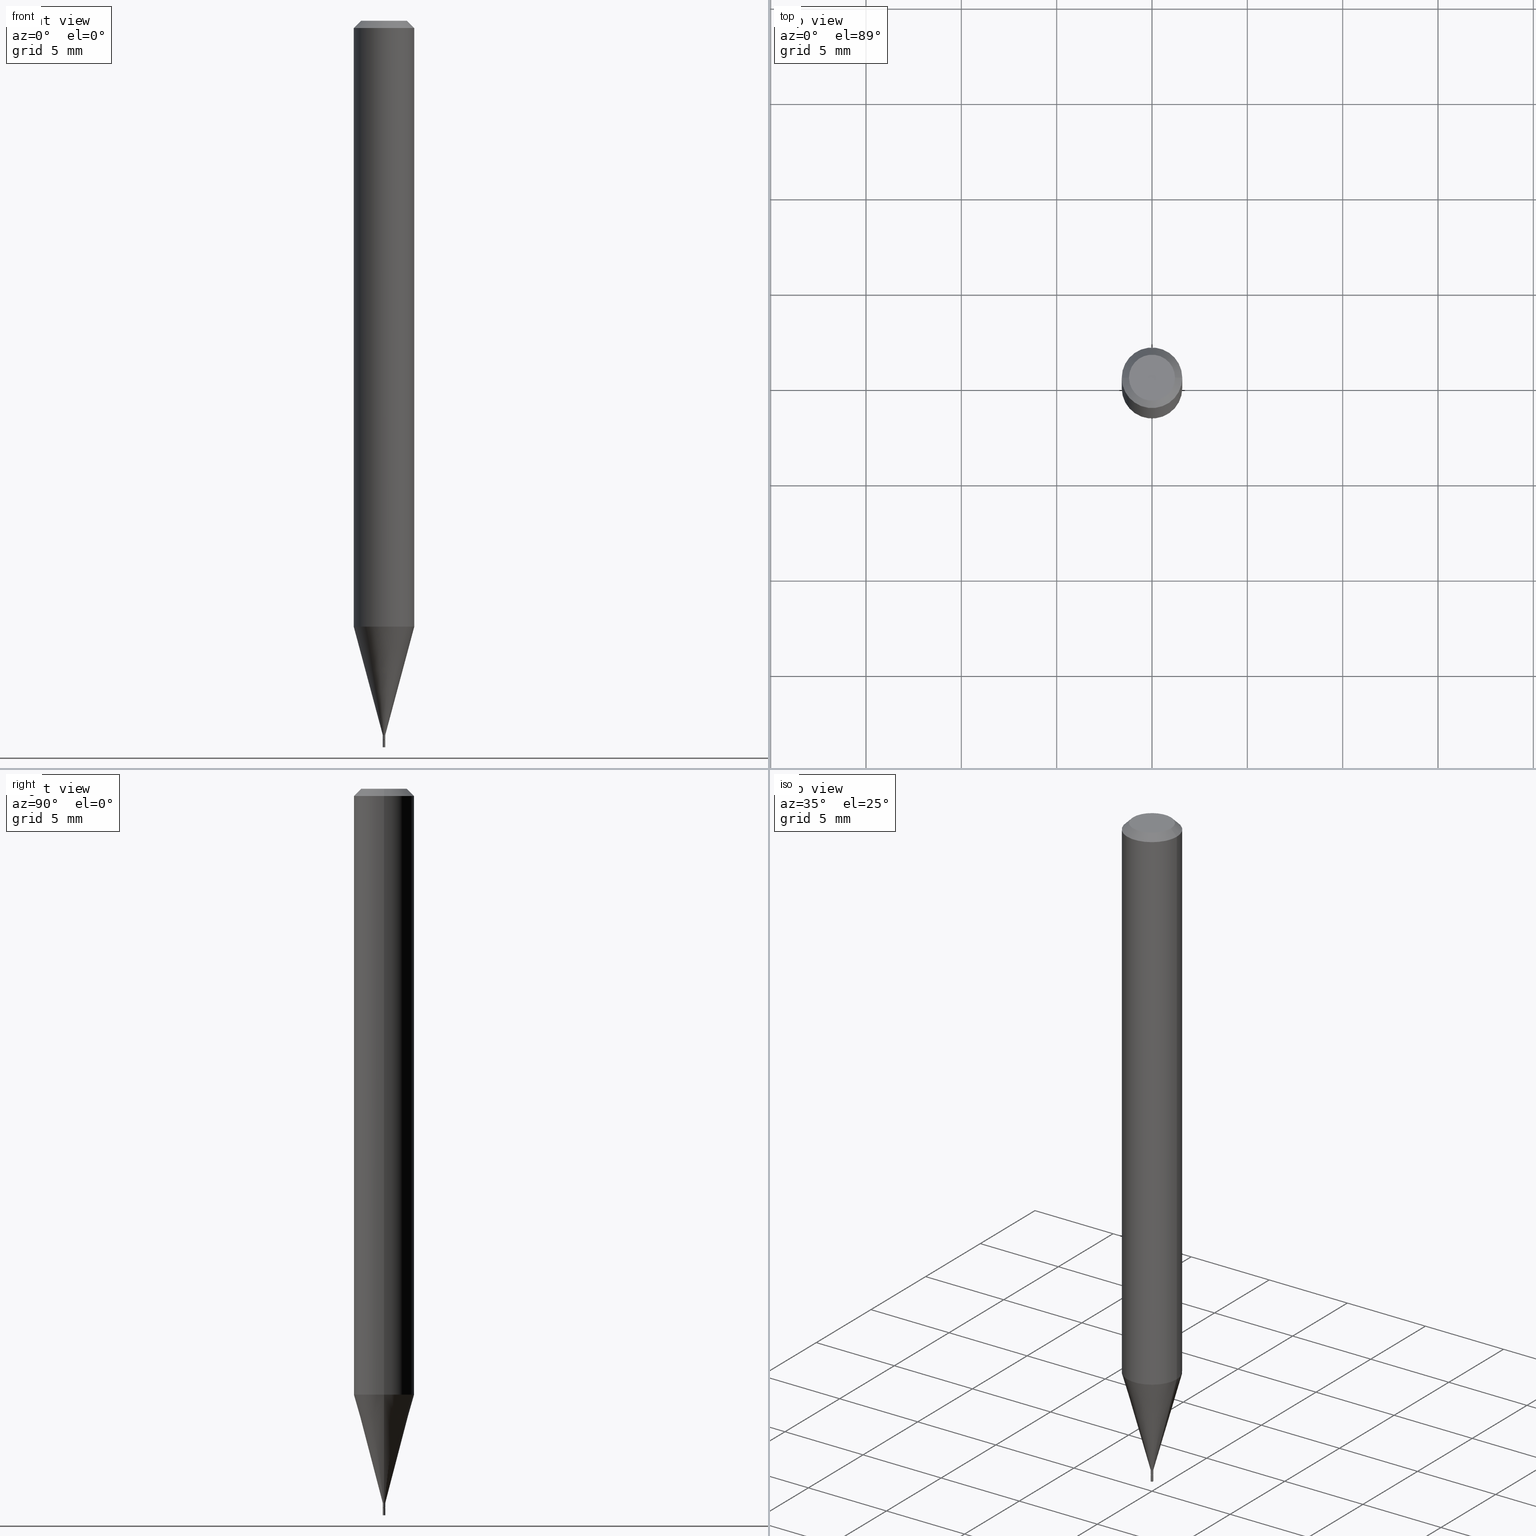
[diagram: canonical four-view strip — front | top / right | iso, engineering-drawing reading convention]
A machine part, canonical four-view strip (front | top / right | iso — engineering-drawing reading convention). The complete STEP part file that produces these views, byte-faithful:
ISO-10303-21;
HEADER;
FILE_DESCRIPTION (( 'STEP AP203' ),
    '1' );
FILE_NAME ('01156.STEP',
    '2024-03-19T23:28:00',
    ( '' ),
    ( '' ),
    'SwSTEP 2.0',
    'SolidWorks 2023',
    '' );
FILE_SCHEMA (( 'CONFIG_CONTROL_DESIGN' ));
ENDSEC;

DATA;
#1 = FACE_OUTER_BOUND ( 'NONE', #32, .T. ) ;
#2 = CARTESIAN_POINT ( 'NONE',  ( 0.002499999999999921556, -1.745740669421511889E-17, 1.219044193948945675E-31 ) ) ;
#3 = VECTOR ( 'NONE', #367, 39.37007874015748143 ) ;
#4 = ORIENTED_EDGE ( 'NONE', *, *, #378, .F. ) ;
#5 = DIRECTION ( 'NONE',  ( 1.000000000000000000, -6.982962677686342441E-15, 0.000000000000000000 ) ) ;
#6 = EDGE_LOOP ( 'NONE', ( #21, #371, #19, #429 ) ) ;
#7 = EDGE_CURVE ( 'NONE', #152, #393, #287, .T. ) ;
#8 = LINE ( 'NONE', #295, #164 ) ;
#9 = ORIENTED_EDGE ( 'NONE', *, *, #408, .T. ) ;
#10 = ORIENTED_EDGE ( 'NONE', *, *, #408, .F. ) ;
#11 = CIRCLE ( 'NONE', #395, 0.002499999999999921122 ) ;
#12 = VERTEX_POINT ( 'NONE', #191 ) ;
#13 = DATE_TIME_ROLE ( 'classification_date' ) ;
#14 = DIRECTION ( 'NONE',  ( -2.445468806185136597E-29, 3.491481338843145583E-15, 1.000000000000000000 ) ) ;
#15 = FACE_OUTER_BOUND ( 'NONE', #461, .T. ) ;
#16 = EDGE_LOOP ( 'NONE', ( #432, #143, #347, #66 ) ) ;
#17 = MANIFOLD_SOLID_BREP ( 'Body-Move/Copy2[1]', #203 ) ;
#18 = CARTESIAN_POINT ( 'NONE',  ( 3.630298442781835897E-29, -5.183104047512649988E-15, -1.484500000000000153 ) ) ;
#19 = ORIENTED_EDGE ( 'NONE', *, *, #161, .T. ) ;
#20 = DIRECTION ( 'NONE',  ( -2.438088387897960049E-29, 3.491481338843145188E-15, 1.000000000000000000 ) ) ;
#21 = ORIENTED_EDGE ( 'NONE', *, *, #207, .F. ) ;
#22 = AXIS2_PLACEMENT_3D ( 'NONE', #275, #63, #127 ) ;
#23 = CYLINDRICAL_SURFACE ( 'NONE', #375, 0.002499999999999921556 ) ;
#24 = VERTEX_POINT ( 'NONE', #436 ) ;
#25 = EDGE_CURVE ( 'NONE', #400, #152, #322, .T. ) ;
#26 = FACE_OUTER_BOUND ( 'NONE', #124, .T. ) ;
#27 = DIRECTION ( 'NONE',  ( 1.000000000000000000, -6.982962677686266711E-15, 4.876176775795935793E-29 ) ) ;
#28 = CC_DESIGN_PERSON_AND_ORGANIZATION_ASSIGNMENT ( #392, #109, ( #101 ) ) ;
#29 = ORIENTED_EDGE ( 'NONE', *, *, #351, .T. ) ;
#30 = ORGANIZATION ( 'UNSPECIFIED', 'UNSPECIFIED', '' ) ;
#31 = ADVANCED_FACE ( 'NONE', ( #374 ), #194, .T. ) ;
#32 = EDGE_LOOP ( 'NONE', ( #106, #46, #148, #356 ) ) ;
#33 = PERSON_AND_ORGANIZATION_ROLE ( 'classification_officer' ) ;
#34 = EDGE_LOOP ( 'NONE', ( #247, #58, #123, #168 ) ) ;
#35 = ADVANCED_BREP_SHAPE_REPRESENTATION ( '01156', ( #17, #174, #71 ), #142 ) ;
#36 = EDGE_LOOP ( 'NONE', ( #10, #354, #104, #230 ) ) ;
#37 = ORIENTED_EDGE ( 'NONE', *, *, #454, .T. ) ;
#38 = APPROVAL_DATE_TIME ( #245, #219 ) ;
#39 = APPROVAL_ROLE ( '' ) ;
#40 = FACE_OUTER_BOUND ( 'NONE', #112, .T. ) ;
#41 = DIRECTION ( 'NONE',  ( -0.2588190451025214611, 5.211531920934550253E-15, 0.9659258262890679791 ) ) ;
#42 = PERSON ( 'UNSPECIFIED', 'UNSPECIFIED', 'UNSPECIFIED', ('UNSPECIFIED'), ('UNSPECIFIED'), ('UNSPECIFIED') ) ;
#43 = APPROVAL_PERSON_ORGANIZATION ( #246, #252, #39 ) ;
#44 = DIRECTION ( 'NONE',  ( -1.000000000000000000, 6.982962677686265922E-15, -4.876176775795935793E-29 ) ) ;
#45 = FACE_OUTER_BOUND ( 'NONE', #274, .T. ) ;
#46 = ORIENTED_EDGE ( 'NONE', *, *, #248, .T. ) ;
#47 = CARTESIAN_POINT ( 'NONE',  ( 0.002499999999999998751, -1.745740669421565815E-17, 1.219044193948983554E-31 ) ) ;
#48 = CARTESIAN_POINT ( 'NONE',  ( -0.06250000000000000000, 4.440892098500626162E-16, -3.074334431409316114E-30 ) ) ;
#49 = ORIENTED_EDGE ( 'NONE', *, *, #25, .F. ) ;
#50 = CARTESIAN_POINT ( 'NONE',  ( 3.631521177184928138E-29, -5.184849788182071492E-15, -1.485000000000000098 ) ) ;
#51 = DIRECTION ( 'NONE',  ( -2.445468806185136597E-29, 3.491481338843145583E-15, 1.000000000000000000 ) ) ;
#52 = AXIS2_PLACEMENT_3D ( 'NONE', #186, #258, #86 ) ;
#53 =( NAMED_UNIT ( * ) SI_UNIT ( $, .STERADIAN. ) SOLID_ANGLE_UNIT ( ) );
#54 = AXIS2_PLACEMENT_3D ( 'NONE', #448, #273, #416 ) ;
#55 = CARTESIAN_POINT ( 'NONE',  ( 3.607066489123076032E-29, -5.149934974793639843E-15, -1.474999999999999867 ) ) ;
#56 = EDGE_CURVE ( 'NONE', #283, #152, #146, .T. ) ;
#57 = LENGTH_MEASURE_WITH_UNIT ( LENGTH_MEASURE( 0.02539999999999999897 ), #343 );
#58 = ORIENTED_EDGE ( 'NONE', *, *, #210, .T. ) ;
#59 = DIRECTION ( 'NONE',  ( -2.445468806185136597E-29, 3.491481338843145583E-15, 1.000000000000000000 ) ) ;
#60 = CC_DESIGN_DATE_AND_TIME_ASSIGNMENT ( #328, #13, ( #173 ) ) ;
#61 = LINE ( 'NONE', #133, #450 ) ;
#62 = EDGE_LOOP ( 'NONE', ( #176, #440 ) ) ;
#63 = DIRECTION ( 'NONE',  ( -2.445468806185136597E-29, 3.491481338843145583E-15, 1.000000000000000000 ) ) ;
#64 = ADVANCED_FACE ( 'NONE', ( #15 ), #263, .T. ) ;
#65 = APPLICATION_PROTOCOL_DEFINITION ( 'international standard', 'config_control_design', 1994, #349 ) ;
#66 = ORIENTED_EDGE ( 'NONE', *, *, #351, .F. ) ;
#67 = AXIS2_PLACEMENT_3D ( 'NONE', #337, #125, #413 ) ;
#68 = DIRECTION ( 'NONE',  ( 1.000000000000000000, -6.982962677686266711E-15, 0.000000000000000000 ) ) ;
#69 = VECTOR ( 'NONE', #360, 39.37007874015748143 ) ;
#70 = PERSON_AND_ORGANIZATION_ROLE ( 'creator' ) ;
#71 = AXIS2_PLACEMENT_3D ( 'NONE', #234, #169, #162 ) ;
#72 = ORIENTED_EDGE ( 'NONE', *, *, #370, .F. ) ;
#73 = CARTESIAN_POINT ( 'NONE',  ( -0.002499999999999921989, -4.528097013164372051E-15, -1.474999999999999867 ) ) ;
#74 = SECURITY_CLASSIFICATION_LEVEL ( 'unclassified' ) ;
#75 = ORIENTED_EDGE ( 'NONE', *, *, #268, .T. ) ;
#76 = EDGE_CURVE ( 'NONE', #140, #437, #433, .T. ) ;
#77 = APPLICATION_PROTOCOL_DEFINITION ( 'international standard', 'config_control_design', 1994, #199 ) ;
#78 = LOCAL_TIME ( 19, 28, 0.000000000000000000, #175 ) ;
#79 = EDGE_LOOP ( 'NONE', ( #431, #211, #108, #381 ) ) ;
#80 = CARTESIAN_POINT ( 'NONE',  ( -0.002499999999999921122, -5.165340479118648651E-15, -1.484500000000000153 ) ) ;
#81 = DIRECTION ( 'NONE',  ( -2.445468806185136597E-29, 3.491481338843145583E-15, 1.000000000000000000 ) ) ;
#82 = CARTESIAN_POINT ( 'NONE',  ( 3.607066489123076032E-29, -5.149934974793639843E-15, -1.474999999999999867 ) ) ;
#83 = ORIENTED_EDGE ( 'NONE', *, *, #268, .F. ) ;
#84 = DIRECTION ( 'NONE',  ( -2.445468806185136877E-29, 3.491481338843145188E-15, 1.000000000000000000 ) ) ;
#85 = ADVANCED_FACE ( 'NONE', ( #126 ), #345, .T. ) ;
#86 = DIRECTION ( 'NONE',  ( 1.000000000000000000, -6.982962677686142071E-15, 0.000000000000000000 ) ) ;
#87 = CLOSED_SHELL ( 'NONE', ( #323, #288, #280, #319, #85, #95, #64, #31, #198, #257, #262, #187 ) ) ;
#88 = ORIENTED_EDGE ( 'NONE', *, *, #460, .F. ) ;
#89 = DIRECTION ( 'NONE',  ( -2.445468806185136597E-29, 3.491481338843145583E-15, 1.000000000000000000 ) ) ;
#90 = DIRECTION ( 'NONE',  ( -2.438088387897960049E-29, 3.491481338843145188E-15, 1.000000000000000000 ) ) ;
#91 = DIRECTION ( 'NONE',  ( -2.445468806185136597E-29, 3.491481338843145583E-15, 1.000000000000000000 ) ) ;
#92 = FACE_OUTER_BOUND ( 'NONE', #6, .T. ) ;
#93 = DIRECTION ( 'NONE',  ( -2.445468806185136597E-29, 3.491481338843145583E-15, 1.000000000000000000 ) ) ;
#94 = DIRECTION ( 'NONE',  ( 1.000000000000000000, -6.982962677686270655E-15, 0.000000000000000000 ) ) ;
#95 = ADVANCED_FACE ( 'NONE', ( #40 ), #110, .T. ) ;
#96 = CARTESIAN_POINT ( 'NONE',  ( 3.668203209277705088E-31, -5.237222008264718399E-17, -0.01499999999999999944 ) ) ;
#97 = DIRECTION ( 'NONE',  ( -2.445468806185136597E-29, 3.491481338843145583E-15, 1.000000000000000000 ) ) ;
#98 = EDGE_CURVE ( 'NONE', #12, #251, #249, .T. ) ;
#99 = ORIENTED_EDGE ( 'NONE', *, *, #129, .T. ) ;
#100 = CARTESIAN_POINT ( 'NONE',  ( 3.584916967085606921E-29, -5.356492647442320375E-15, -1.500000000000000222 ) ) ;
#101 = PRODUCT_DEFINITION ( 'UNKNOWN', '', #244, #294 ) ;
#102 = VECTOR ( 'NONE', #419, 39.37007874015748143 ) ;
#103 = CALENDAR_DATE ( 2024, 19, 3 ) ;
#104 = ORIENTED_EDGE ( 'NONE', *, *, #390, .T. ) ;
#105 = AXIS2_PLACEMENT_3D ( 'NONE', #298, #227, #44 ) ;
#106 = ORIENTED_EDGE ( 'NONE', *, *, #355, .F. ) ;
#107 = EDGE_CURVE ( 'NONE', #192, #391, #255, .T. ) ;
#108 = ORIENTED_EDGE ( 'NONE', *, *, #56, .F. ) ;
#109 = PERSON_AND_ORGANIZATION_ROLE ( 'creator' ) ;
#110 = CONICAL_SURFACE ( 'NONE', #333, 0.002499999999999921989, 0.2617993877991501850 ) ;
#111 = LOCAL_TIME ( 19, 28, 0.000000000000000000, #281 ) ;
#112 = EDGE_LOOP ( 'NONE', ( #49, #99, #425, #458 ) ) ;
#113 = EDGE_CURVE ( 'NONE', #24, #313, #181, .T. ) ;
#114 = DIRECTION ( 'NONE',  ( -2.445468806185136597E-29, 3.491481338843145583E-15, 1.000000000000000000 ) ) ;
#115 = DIRECTION ( 'NONE',  ( -2.445468806185136597E-29, 3.491481338843145583E-15, 1.000000000000000000 ) ) ;
#116 = CALENDAR_DATE ( 2024, 19, 3 ) ;
#117 = CARTESIAN_POINT ( 'NONE',  ( -0.001999999999999997440, -5.167989706292759063E-15, -1.485000000000000098 ) ) ;
#118 = CARTESIAN_POINT ( 'NONE',  ( 3.607066489123076032E-29, -5.149934974793639843E-15, -1.474999999999999867 ) ) ;
#119 = DIRECTION ( 'NONE',  ( -2.445468806185136597E-29, 3.491481338843145583E-15, 1.000000000000000000 ) ) ;
#120 = AXIS2_PLACEMENT_3D ( 'NONE', #409, #93, #223 ) ;
#121 = DIRECTION ( 'NONE',  ( -2.445468806185136877E-29, 3.491481338843145188E-15, 1.000000000000000000 ) ) ;
#122 = CC_DESIGN_APPROVAL ( #340, ( #173 ) ) ;
#123 = ORIENTED_EDGE ( 'NONE', *, *, #241, .F. ) ;
#124 = EDGE_LOOP ( 'NONE', ( #444, #158 ) ) ;
#125 = DIRECTION ( 'NONE',  ( 2.445468806185136597E-29, -3.491481338843145583E-15, -1.000000000000000000 ) ) ;
#126 = FACE_OUTER_BOUND ( 'NONE', #79, .T. ) ;
#127 = DIRECTION ( 'NONE',  ( 1.000000000000000000, -6.982962677686266711E-15, 4.876176775795935793E-29 ) ) ;
#128 = AXIS2_PLACEMENT_3D ( 'NONE', #377, #97, #302 ) ;
#129 = EDGE_CURVE ( 'NONE', #400, #313, #324, .T. ) ;
#130 = CARTESIAN_POINT ( 'NONE',  ( -0.06250000000000000000, -1.766152815080844635E-15, -0.01499999999999999944 ) ) ;
#131 = DIRECTION ( 'NONE',  ( -0.7071067811865647812, 7.493145998870415691E-15, 0.7071067811865301422 ) ) ;
#132 = PRODUCT_RELATED_PRODUCT_CATEGORY ( 'detail', '', ( #188 ) ) ;
#133 = CARTESIAN_POINT ( 'NONE',  ( 0.001999999999999997440, -5.198815713537444309E-15, -1.485000000000000098 ) ) ;
#134 = DIRECTION ( 'NONE',  ( 0.7071067811865647812, -2.468850131082438104E-15, 0.7071067811865301422 ) ) ;
#135 = VECTOR ( 'NONE', #84, 39.37007874015748143 ) ;
#136 = AXIS2_PLACEMENT_3D ( 'NONE', #100, #20, #339 ) ;
#137 = EDGE_CURVE ( 'NONE', #251, #12, #293, .T. ) ;
#138 = CC_DESIGN_DATE_AND_TIME_ASSIGNMENT ( #358, #179, ( #101 ) ) ;
#139 = PERSON_AND_ORGANIZATION ( #42, #30 ) ;
#140 = VERTEX_POINT ( 'NONE', #325 ) ;
#141 = AXIS2_PLACEMENT_3D ( 'NONE', #410, #91, #151 ) ;
#142 =( GEOMETRIC_REPRESENTATION_CONTEXT ( 3 ) GLOBAL_UNCERTAINTY_ASSIGNED_CONTEXT ( ( #272 ) ) GLOBAL_UNIT_ASSIGNED_CONTEXT ( ( #307, #206, #53 ) ) REPRESENTATION_CONTEXT ( 'NONE', 'WORKASPACE' ) );
#143 = ORIENTED_EDGE ( 'NONE', *, *, #7, .T. ) ;
#144 = CARTESIAN_POINT ( 'NONE',  ( -1.505681066337554235E-44, 2.149713515899588158E-30, 6.157024217726067260E-16 ) ) ;
#145 = EDGE_LOOP ( 'NONE', ( #456, #180, #243, #379 ) ) ;
#146 = CIRCLE ( 'NONE', #364, 0.06250000000000000000 ) ;
#147 = CARTESIAN_POINT ( 'NONE',  ( 3.631521177184928138E-29, -5.184849788182071492E-15, -1.485000000000000098 ) ) ;
#148 = ORIENTED_EDGE ( 'NONE', *, *, #460, .T. ) ;
#149 = DIRECTION ( 'NONE',  ( -2.445468806185136597E-29, 3.491481338843145583E-15, 1.000000000000000000 ) ) ;
#150 = EDGE_CURVE ( 'NONE', #437, #140, #183, .T. ) ;
#151 = DIRECTION ( 'NONE',  ( 1.000000000000000000, -6.982962677686266711E-15, 4.876176775795935793E-29 ) ) ;
#152 = VERTEX_POINT ( 'NONE', #368 ) ;
#153 = DIRECTION ( 'NONE',  ( -2.445468806185136597E-29, 3.491481338843145583E-15, 1.000000000000000000 ) ) ;
#154 = DIRECTION ( 'NONE',  ( 1.000000000000000000, -6.982962677686356641E-15, 0.000000000000000000 ) ) ;
#155 = CC_DESIGN_PERSON_AND_ORGANIZATION_ASSIGNMENT ( #214, #33, ( #173 ) ) ;
#156 = ORIENTED_EDGE ( 'NONE', *, *, #355, .T. ) ;
#157 = CARTESIAN_POINT ( 'NONE',  ( 1.745740669425197348E-17, 0.002499999999994814096, -1.485000000000000098 ) ) ;
#158 = ORIENTED_EDGE ( 'NONE', *, *, #150, .F. ) ;
#159 = PERSON_AND_ORGANIZATION ( #42, #30 ) ;
#160 = DIRECTION ( 'NONE',  ( 1.000000000000000000, -6.982962677686359007E-15, 0.000000000000000000 ) ) ;
#161 = EDGE_CURVE ( 'NONE', #140, #12, #335, .T. ) ;
#162 = DIRECTION ( 'NONE',  ( 1.000000000000000000, 0.000000000000000000, 0.000000000000000000 ) ) ;
#163 = CARTESIAN_POINT ( 'NONE',  ( 0.06250000000000000000, -4.888073874380388472E-16, -0.01499999999999999944 ) ) ;
#164 = VECTOR ( 'NONE', #331, 39.37007874015748143 ) ;
#165 = CIRCLE ( 'NONE', #311, 0.04749999999999999362 ) ;
#166 = FACE_OUTER_BOUND ( 'NONE', #34, .T. ) ;
#167 = DIRECTION ( 'NONE',  ( 2.438088387897960049E-29, -3.491481338843145188E-15, -1.000000000000000000 ) ) ;
#168 = ORIENTED_EDGE ( 'NONE', *, *, #113, .F. ) ;
#169 = DIRECTION ( 'NONE',  ( 0.000000000000000000, 0.000000000000000000, 1.000000000000000000 ) ) ;
#170 = ORIENTED_EDGE ( 'NONE', *, *, #107, .F. ) ;
#171 = ADVANCED_FACE ( 'NONE', ( #92 ), #372, .T. ) ;
#172 = AXIS2_PLACEMENT_3D ( 'NONE', #403, #299, #265 ) ;
#173 = SECURITY_CLASSIFICATION ( '', '', #74 ) ;
#174 = MANIFOLD_SOLID_BREP ( 'Body-Move/Copy2[2]', #87 ) ;
#175 = COORDINATED_UNIVERSAL_TIME_OFFSET ( 5, 0, .BEHIND. ) ;
#176 = ORIENTED_EDGE ( 'NONE', *, *, #98, .T. ) ;
#177 = CC_DESIGN_PERSON_AND_ORGANIZATION_ASSIGNMENT ( #447, #303, ( #188 ) ) ;
#178 = AXIS2_PLACEMENT_3D ( 'NONE', #427, #329, #380 ) ;
#179 = DATE_TIME_ROLE ( 'creation_date' ) ;
#180 = ORIENTED_EDGE ( 'NONE', *, *, #207, .T. ) ;
#181 = LINE ( 'NONE', #2, #3 ) ;
#182 = ORIENTED_EDGE ( 'NONE', *, *, #113, .T. ) ;
#183 = CIRCLE ( 'NONE', #305, 0.002499999999999998751 ) ;
#184 = LINE ( 'NONE', #376, #135 ) ;
#185 = APPROVAL_PERSON_ORGANIZATION ( #139, #219, #389 ) ;
#186 = CARTESIAN_POINT ( 'NONE',  ( 3.631521177184928138E-29, -5.184849788182071492E-15, -1.485000000000000098 ) ) ;
#187 = ADVANCED_FACE ( 'NONE', ( #45 ), #411, .T. ) ;
#188 = PRODUCT ( '01156', '01156', '', ( #276 ) ) ;
#189 = COORDINATED_UNIVERSAL_TIME_OFFSET ( 5, 0, .BEHIND. ) ;
#190 = PLANE ( 'NONE',  #105 ) ;
#191 = CARTESIAN_POINT ( 'NONE',  ( 0.002499999999999998751, -5.202307194876286528E-15, -1.485000000000000098 ) ) ;
#192 = VERTEX_POINT ( 'NONE', #279 ) ;
#193 = FACE_OUTER_BOUND ( 'NONE', #36, .T. ) ;
#194 = CONICAL_SURFACE ( 'NONE', #172, 0.06250000000000000000, 0.7853981633974278509 ) ;
#195 = CARTESIAN_POINT ( 'NONE',  ( 3.631521177184928138E-29, -5.184849788182071492E-15, -1.485000000000000098 ) ) ;
#196 = ORIENTED_EDGE ( 'NONE', *, *, #378, .T. ) ;
#197 = FACE_OUTER_BOUND ( 'NONE', #369, .T. ) ;
#198 = ADVANCED_FACE ( 'NONE', ( #417 ), #190, .F. ) ;
#199 = APPLICATION_CONTEXT ( 'configuration controlled 3d designs of mechanical parts and assemblies' ) ;
#200 = CARTESIAN_POINT ( 'NONE',  ( 0.000000000000000000, 0.000000000000000000, 0.000000000000000000 ) ) ;
#201 = FACE_OUTER_BOUND ( 'NONE', #62, .T. ) ;
#202 = LINE ( 'NONE', #452, #102 ) ;
#203 = CLOSED_SHELL ( 'NONE', ( #342, #362, #171, #466 ) ) ;
#204 = APPROVAL_PERSON_ORGANIZATION ( #159, #340, #434 ) ;
#205 = CARTESIAN_POINT ( 'NONE',  ( -0.04749999999999999362, 3.578768372314221353E-16, 6.157024217726043594E-16 ) ) ;
#206 =( NAMED_UNIT ( * ) PLANE_ANGLE_UNIT ( ) SI_UNIT ( $, .RADIAN. ) );
#207 = EDGE_CURVE ( 'NONE', #437, #251, #184, .T. ) ;
#208 = AXIS2_PLACEMENT_3D ( 'NONE', #195, #338, #267 ) ;
#209 = AXIS2_PLACEMENT_3D ( 'NONE', #96, #59, #451 ) ;
#210 = EDGE_CURVE ( 'NONE', #397, #400, #8, .T. ) ;
#211 = ORIENTED_EDGE ( 'NONE', *, *, #25, .T. ) ;
#212 = DIRECTION ( 'NONE',  ( 1.000000000000000000, -6.982962677686267499E-15, 4.852736867747366768E-29 ) ) ;
#213 = ORIENTED_EDGE ( 'NONE', *, *, #421, .T. ) ;
#214 = PERSON_AND_ORGANIZATION ( #42, #30 ) ;
#215 = AXIS2_PLACEMENT_3D ( 'NONE', #147, #119, #326 ) ;
#216 = AXIS2_PLACEMENT_3D ( 'NONE', #399, #81, #366 ) ;
#217 = CALENDAR_DATE ( 2024, 19, 3 ) ;
#218 = CARTESIAN_POINT ( 'NONE',  ( 0.000000000000000000, 0.000000000000000000, 0.000000000000000000 ) ) ;
#219 = APPROVAL ( #396, 'UNSPECIFIED' ) ;
#220 = CARTESIAN_POINT ( 'NONE',  ( 0.002499999999999921989, -5.167392381487854879E-15, -1.474999999999999867 ) ) ;
#221 = DIRECTION ( 'NONE',  ( -2.445468806185136597E-29, 3.491481338843145583E-15, 1.000000000000000000 ) ) ;
#222 = CIRCLE ( 'NONE', #404, 0.002499999999999921989 ) ;
#223 = DIRECTION ( 'NONE',  ( 1.000000000000000000, -6.982962677686342441E-15, 0.000000000000000000 ) ) ;
#224 = VECTOR ( 'NONE', #430, 39.37007874015748143 ) ;
#225 = DIRECTION ( 'NONE',  ( -2.445468806185136597E-29, 3.491481338843145583E-15, 1.000000000000000000 ) ) ;
#226 = DIRECTION ( 'NONE',  ( 1.000000000000000000, -6.982962677686142071E-15, 0.000000000000000000 ) ) ;
#227 = DIRECTION ( 'NONE',  ( 2.438088387897960049E-29, -3.491481338843145188E-15, -1.000000000000000000 ) ) ;
#228 = ORIENTED_EDGE ( 'NONE', *, *, #248, .F. ) ;
#229 = CARTESIAN_POINT ( 'NONE',  ( 3.668203209277704895E-29, -5.237222008264718177E-15, -1.500000000000000222 ) ) ;
#230 = ORIENTED_EDGE ( 'NONE', *, *, #421, .F. ) ;
#231 = CARTESIAN_POINT ( 'NONE',  ( 0.06250000000000000000, -4.804546997134559093E-15, -1.251076951545867733 ) ) ;
#232 = CYLINDRICAL_SURFACE ( 'NONE', #128, 0.002499999999999998751 ) ;
#233 = CARTESIAN_POINT ( 'NONE',  ( 0.002499999999999921989, -5.167392381487854879E-15, -1.474999999999999867 ) ) ;
#234 = CARTESIAN_POINT ( 'NONE',  ( 0.000000000000000000, 0.000000000000000000, 0.000000000000000000 ) ) ;
#235 = ORIENTED_EDGE ( 'NONE', *, *, #278, .T. ) ;
#236 = PLANE ( 'NONE',  #136 ) ;
#237 = CIRCLE ( 'NONE', #277, 0.001999999999999997440 ) ;
#238 = CC_DESIGN_APPROVAL ( #252, ( #244 ) ) ;
#239 = EDGE_CURVE ( 'NONE', #313, #283, #266, .T. ) ;
#240 = PLANE ( 'NONE',  #426 ) ;
#241 = EDGE_CURVE ( 'NONE', #313, #400, #222, .T. ) ;
#242 = DATE_AND_TIME ( #103, #405 ) ;
#243 = ORIENTED_EDGE ( 'NONE', *, *, #98, .F. ) ;
#244 = PRODUCT_DEFINITION_FORMATION_WITH_SPECIFIED_SOURCE ( 'ANY', '', #188, .NOT_KNOWN. ) ;
#245 = DATE_AND_TIME ( #320, #78 ) ;
#246 = PERSON_AND_ORGANIZATION ( #42, #30 ) ;
#247 = ORIENTED_EDGE ( 'NONE', *, *, #370, .T. ) ;
#248 = EDGE_CURVE ( 'NONE', #291, #315, #316, .T. ) ;
#249 = CIRCLE ( 'NONE', #208, 0.002499999999999998751 ) ;
#250 = CONICAL_SURFACE ( 'NONE', #67, 0.06250000000000000000, 0.7853981633974278509 ) ;
#251 = VERTEX_POINT ( 'NONE', #373 ) ;
#252 = APPROVAL ( #359, 'UNSPECIFIED' ) ;
#253 = COORDINATED_UNIVERSAL_TIME_OFFSET ( 5, 0, .BEHIND. ) ;
#254 = DIRECTION ( 'NONE',  ( 1.000000000000000000, -6.982962677686265922E-15, 4.876176775795935793E-29 ) ) ;
#255 = LINE ( 'NONE', #414, #69 ) ;
#256 = CARTESIAN_POINT ( 'NONE',  ( 3.668203209277705088E-31, -5.237222008264718399E-17, -0.01499999999999999944 ) ) ;
#257 = ADVANCED_FACE ( 'NONE', ( #260 ), #435, .F. ) ;
#258 = DIRECTION ( 'NONE',  ( -2.445468806185136597E-29, 3.491481338843145583E-15, 1.000000000000000000 ) ) ;
#259 = AXIS2_PLACEMENT_3D ( 'NONE', #218, #153, #297 ) ;
#260 = FACE_OUTER_BOUND ( 'NONE', #289, .T. ) ;
#261 = CC_DESIGN_SECURITY_CLASSIFICATION ( #173, ( #244 ) ) ;
#262 = ADVANCED_FACE ( 'NONE', ( #1 ), #420, .T. ) ;
#263 = CYLINDRICAL_SURFACE ( 'NONE', #141, 0.06250000000000000000 ) ;
#264 = DIRECTION ( 'NONE',  ( 0.2588190451025214611, 1.565188264969620982E-15, 0.9659258262890679791 ) ) ;
#265 = DIRECTION ( 'NONE',  ( -1.000000000000000000, 6.982962677686266711E-15, 0.000000000000000000 ) ) ;
#266 = LINE ( 'NONE', #220, #310 ) ;
#267 = DIRECTION ( 'NONE',  ( 1.000000000000000000, -6.982962677686142071E-15, 0.000000000000000000 ) ) ;
#268 = EDGE_CURVE ( 'NONE', #315, #291, #237, .T. ) ;
#269 = DIRECTION ( 'NONE',  ( -2.445468806185136597E-29, 3.491481338843145583E-15, 1.000000000000000000 ) ) ;
#270 = VECTOR ( 'NONE', #131, 39.37007874015748854 ) ;
#271 = CC_DESIGN_PERSON_AND_ORGANIZATION_ASSIGNMENT ( #386, #70, ( #244 ) ) ;
#272 = UNCERTAINTY_MEASURE_WITH_UNIT (LENGTH_MEASURE( 1.000000000000000082E-05 ), #307, 'distance_accuracy_value', 'NONE');
#273 = DIRECTION ( 'NONE',  ( -2.445468806185136597E-29, 3.491481338843145583E-15, 1.000000000000000000 ) ) ;
#274 = EDGE_LOOP ( 'NONE', ( #321, #235, #182, #301 ) ) ;
#275 = CARTESIAN_POINT ( 'NONE',  ( 0.000000000000000000, 0.000000000000000000, 0.000000000000000000 ) ) ;
#276 = MECHANICAL_CONTEXT ( 'NONE', #349, 'mechanical' ) ;
#277 = AXIS2_PLACEMENT_3D ( 'NONE', #50, #149, #406 ) ;
#278 = EDGE_CURVE ( 'NONE', #397, #24, #457, .T. ) ;
#279 = CARTESIAN_POINT ( 'NONE',  ( 0.04749999999999999362, -4.035134999187568269E-16, 6.157024217726092898E-16 ) ) ;
#280 = ADVANCED_FACE ( 'NONE', ( #193 ), #250, .T. ) ;
#281 = COORDINATED_UNIVERSAL_TIME_OFFSET ( 5, 0, .BEHIND. ) ;
#282 = PERSON_AND_ORGANIZATION ( #42, #30 ) ;
#283 = VERTEX_POINT ( 'NONE', #231 ) ;
#284 = AXIS2_PLACEMENT_3D ( 'NONE', #229, #446, #296 ) ;
#285 = COORDINATED_UNIVERSAL_TIME_OFFSET ( 5, 0, .BEHIND. ) ;
#286 = CARTESIAN_POINT ( 'NONE',  ( 3.631521177184928138E-29, -5.184849788182071492E-15, -1.485000000000000098 ) ) ;
#287 = LINE ( 'NONE', #48, #352 ) ;
#288 = ADVANCED_FACE ( 'NONE', ( #197 ), #365, .T. ) ;
#289 = EDGE_LOOP ( 'NONE', ( #83, #228 ) ) ;
#290 = CARTESIAN_POINT ( 'NONE',  ( 3.668203209277704895E-29, -5.237222008264718177E-15, -1.500000000000000222 ) ) ;
#291 = VERTEX_POINT ( 'NONE', #117 ) ;
#292 = CARTESIAN_POINT ( 'NONE',  ( 0.000000000000000000, 0.000000000000000000, 0.000000000000000000 ) ) ;
#293 = CIRCLE ( 'NONE', #52, 0.002499999999999998751 ) ;
#294 = DESIGN_CONTEXT ( 'detailed design', #199, 'design' ) ;
#295 = CARTESIAN_POINT ( 'NONE',  ( -0.002499999999999921556, 1.776356839400194727E-17, -1.229733772563687813E-31 ) ) ;
#296 = DIRECTION ( 'NONE',  ( 1.000000000000000000, -6.982962677686142071E-15, 0.000000000000000000 ) ) ;
#297 = DIRECTION ( 'NONE',  ( 1.000000000000000000, -6.982962677686266711E-15, 4.876176775795936914E-29 ) ) ;
#298 = CARTESIAN_POINT ( 'NONE',  ( 3.316907271900976096E-16, 0.04749999999999999362, 1.420058472912539912E-16 ) ) ;
#299 = DIRECTION ( 'NONE',  ( 2.445468806185136597E-29, -3.491481338843145583E-15, -1.000000000000000000 ) ) ;
#300 = EDGE_CURVE ( 'NONE', #393, #391, #317, .T. ) ;
#301 = ORIENTED_EDGE ( 'NONE', *, *, #129, .F. ) ;
#302 = DIRECTION ( 'NONE',  ( 1.000000000000000000, -6.982962677686266711E-15, 4.876176775795936914E-29 ) ) ;
#303 = PERSON_AND_ORGANIZATION_ROLE ( 'design_owner' ) ;
#304 = LINE ( 'NONE', #308, #270 ) ;
#305 = AXIS2_PLACEMENT_3D ( 'NONE', #290, #89, #226 ) ;
#306 = CIRCLE ( 'NONE', #178, 0.06250000000000000000 ) ;
#307 =( CONVERSION_BASED_UNIT ( 'INCH', #57 ) LENGTH_UNIT ( ) NAMED_UNIT ( #442 ) );
#308 = CARTESIAN_POINT ( 'NONE',  ( -0.001999999999999997440, -5.170638933466869476E-15, -1.485000000000000098 ) ) ;
#309 = DIRECTION ( 'NONE',  ( -1.000000000000000000, 6.982962677686265922E-15, -4.876176775795935793E-29 ) ) ;
#310 = VECTOR ( 'NONE', #264, 39.37007874015748143 ) ;
#311 = AXIS2_PLACEMENT_3D ( 'NONE', #144, #423, #212 ) ;
#312 = EDGE_LOOP ( 'NONE', ( #196, #9 ) ) ;
#313 = VERTEX_POINT ( 'NONE', #233 ) ;
#314 = VERTEX_POINT ( 'NONE', #205 ) ;
#315 = VERTEX_POINT ( 'NONE', #348 ) ;
#316 = CIRCLE ( 'NONE', #120, 0.001999999999999997440 ) ;
#317 = CIRCLE ( 'NONE', #346, 0.06250000000000000000 ) ;
#318 = CARTESIAN_POINT ( 'NONE',  ( -0.002499999999999998751, -5.193272329829392708E-15, -1.500000000000000222 ) ) ;
#319 = ADVANCED_FACE ( 'NONE', ( #341 ), #382, .T. ) ;
#320 = CALENDAR_DATE ( 2024, 19, 3 ) ;
#321 = ORIENTED_EDGE ( 'NONE', *, *, #210, .F. ) ;
#322 = LINE ( 'NONE', #332, #394 ) ;
#323 = ADVANCED_FACE ( 'NONE', ( #166 ), #23, .T. ) ;
#324 = CIRCLE ( 'NONE', #387, 0.002499999999999921989 ) ;
#325 = CARTESIAN_POINT ( 'NONE',  ( 0.002499999999999998751, -5.254679414958934001E-15, -1.500000000000000222 ) ) ;
#326 = DIRECTION ( 'NONE',  ( 1.000000000000000000, -6.982962677686342441E-15, 0.000000000000000000 ) ) ;
#327 = CARTESIAN_POINT ( 'NONE',  ( 3.059469659142613042E-29, -4.368111829779167423E-15, -1.251076951545867733 ) ) ;
#328 = DATE_AND_TIME ( #334, #336 ) ;
#329 = DIRECTION ( 'NONE',  ( -2.445468806185136597E-29, 3.491481338843145583E-15, 1.000000000000000000 ) ) ;
#330 = DIRECTION ( 'NONE',  ( -2.445468806185136877E-29, 3.491481338843145188E-15, 1.000000000000000000 ) ) ;
#331 = DIRECTION ( 'NONE',  ( -2.445468806185136877E-29, 3.491481338843145188E-15, 1.000000000000000000 ) ) ;
#332 = CARTESIAN_POINT ( 'NONE',  ( -0.002499999999999921989, -5.132171406399637717E-15, -1.474999999999999867 ) ) ;
#333 = AXIS2_PLACEMENT_3D ( 'NONE', #118, #51, #407 ) ;
#334 = CALENDAR_DATE ( 2024, 19, 3 ) ;
#335 = LINE ( 'NONE', #47, #449 ) ;
#336 = LOCAL_TIME ( 19, 28, 0.000000000000000000, #189 ) ;
#337 = CARTESIAN_POINT ( 'NONE',  ( 3.668203209277705088E-31, -5.237222008264718399E-17, -0.01499999999999999944 ) ) ;
#338 = DIRECTION ( 'NONE',  ( -2.445468806185136597E-29, 3.491481338843145583E-15, 1.000000000000000000 ) ) ;
#339 = DIRECTION ( 'NONE',  ( 1.000000000000000000, -6.982962677686265922E-15, 4.876176775795935793E-29 ) ) ;
#340 = APPROVAL ( #445, 'UNSPECIFIED' ) ;
#341 = FACE_OUTER_BOUND ( 'NONE', #16, .T. ) ;
#342 = ADVANCED_FACE ( 'NONE', ( #418 ), #232, .T. ) ;
#343 =( LENGTH_UNIT ( ) NAMED_UNIT ( * ) SI_UNIT ( $, .METRE. ) );
#344 = DIRECTION ( 'NONE',  ( -2.445468806185136597E-29, 3.491481338843145583E-15, 1.000000000000000000 ) ) ;
#345 = CONICAL_SURFACE ( 'NONE', #455, 0.002499999999999921989, 0.2617993877991501850 ) ;
#346 = AXIS2_PLACEMENT_3D ( 'NONE', #256, #402, #68 ) ;
#347 = ORIENTED_EDGE ( 'NONE', *, *, #390, .F. ) ;
#348 = CARTESIAN_POINT ( 'NONE',  ( 0.001999999999999997440, -5.198815713537444309E-15, -1.485000000000000098 ) ) ;
#349 = APPLICATION_CONTEXT ( 'configuration controlled 3d designs of mechanical parts and assemblies' ) ;
#350 = ORIENTED_EDGE ( 'NONE', *, *, #300, .F. ) ;
#351 = EDGE_CURVE ( 'NONE', #283, #391, #202, .T. ) ;
#352 = VECTOR ( 'NONE', #121, 39.37007874015748143 ) ;
#353 = CIRCLE ( 'NONE', #54, 0.04749999999999999362 ) ;
#354 = ORIENTED_EDGE ( 'NONE', *, *, #107, .T. ) ;
#355 = EDGE_CURVE ( 'NONE', #291, #397, #304, .T. ) ;
#356 = ORIENTED_EDGE ( 'NONE', *, *, #278, .F. ) ;
#357 = CC_DESIGN_APPROVAL ( #219, ( #101 ) ) ;
#358 = DATE_AND_TIME ( #217, #111 ) ;
#359 = APPROVAL_STATUS ( 'not_yet_approved' ) ;
#360 = DIRECTION ( 'NONE',  ( 0.7071067811865330288, -7.319954787623207136E-15, -0.7071067811865620056 ) ) ;
#361 = CARTESIAN_POINT ( 'NONE',  ( -0.06250000000000000000, 3.840629472727444916E-16, -0.01499999999999999944 ) ) ;
#362 = ADVANCED_FACE ( 'NONE', ( #26 ), #236, .F. ) ;
#363 = DIRECTION ( 'NONE',  ( 1.000000000000000000, -6.982962677686356641E-15, 0.000000000000000000 ) ) ;
#364 = AXIS2_PLACEMENT_3D ( 'NONE', #327, #225, #94 ) ;
#365 = CONICAL_SURFACE ( 'NONE', #415, 0.001999999999999997440, 0.7853981633974728149 ) ;
#366 = DIRECTION ( 'NONE',  ( 1.000000000000000000, -6.982962677686359007E-15, 0.000000000000000000 ) ) ;
#367 = DIRECTION ( 'NONE',  ( -2.445468806185136877E-29, 3.491481338843145188E-15, 1.000000000000000000 ) ) ;
#368 = CARTESIAN_POINT ( 'NONE',  ( -0.06250000000000000000, -3.924022619929104807E-15, -1.251076951545867733 ) ) ;
#369 = EDGE_LOOP ( 'NONE', ( #75, #156, #72, #88 ) ) ;
#370 = EDGE_CURVE ( 'NONE', #24, #397, #11, .T. ) ;
#371 = ORIENTED_EDGE ( 'NONE', *, *, #150, .T. ) ;
#372 = CYLINDRICAL_SURFACE ( 'NONE', #259, 0.002499999999999998751 ) ;
#373 = CARTESIAN_POINT ( 'NONE',  ( -0.002499999999999998751, -5.193272329829392708E-15, -1.485000000000000098 ) ) ;
#374 = FACE_OUTER_BOUND ( 'NONE', #459, .T. ) ;
#375 = AXIS2_PLACEMENT_3D ( 'NONE', #200, #344, #383 ) ;
#376 = CARTESIAN_POINT ( 'NONE',  ( -0.002499999999999998751, 1.776356839400249577E-17, -1.229733772563725911E-31 ) ) ;
#377 = CARTESIAN_POINT ( 'NONE',  ( 0.000000000000000000, 0.000000000000000000, 0.000000000000000000 ) ) ;
#378 = EDGE_CURVE ( 'NONE', #314, #192, #353, .T. ) ;
#379 = ORIENTED_EDGE ( 'NONE', *, *, #161, .F. ) ;
#380 = DIRECTION ( 'NONE',  ( 1.000000000000000000, -6.982962677686270655E-15, 0.000000000000000000 ) ) ;
#381 = ORIENTED_EDGE ( 'NONE', *, *, #239, .F. ) ;
#382 = CYLINDRICAL_SURFACE ( 'NONE', #22, 0.06250000000000000000 ) ;
#383 = DIRECTION ( 'NONE',  ( 1.000000000000000000, -6.982962677686266711E-15, 4.876176775795935793E-29 ) ) ;
#384 = DIRECTION ( 'NONE',  ( -2.445468806185136597E-29, 3.491481338843145583E-15, 1.000000000000000000 ) ) ;
#385 = CC_DESIGN_PERSON_AND_ORGANIZATION_ASSIGNMENT ( #282, #428, ( #244 ) ) ;
#386 = PERSON_AND_ORGANIZATION ( #42, #30 ) ;
#387 = AXIS2_PLACEMENT_3D ( 'NONE', #82, #221, #363 ) ;
#388 = CIRCLE ( 'NONE', #209, 0.06250000000000000000 ) ;
#389 = APPROVAL_ROLE ( '' ) ;
#390 = EDGE_CURVE ( 'NONE', #391, #393, #388, .T. ) ;
#391 = VERTEX_POINT ( 'NONE', #163 ) ;
#392 = PERSON_AND_ORGANIZATION ( #42, #30 ) ;
#393 = VERTEX_POINT ( 'NONE', #130 ) ;
#394 = VECTOR ( 'NONE', #41, 39.37007874015748143 ) ;
#395 = AXIS2_PLACEMENT_3D ( 'NONE', #18, #269, #160 ) ;
#396 = APPROVAL_STATUS ( 'not_yet_approved' ) ;
#397 = VERTEX_POINT ( 'NONE', #80 ) ;
#398 = APPROVAL_DATE_TIME ( #412, #340 ) ;
#399 = CARTESIAN_POINT ( 'NONE',  ( 3.630298442781835897E-29, -5.183104047512649988E-15, -1.484500000000000153 ) ) ;
#400 = VERTEX_POINT ( 'NONE', #73 ) ;
#401 = SHAPE_DEFINITION_REPRESENTATION ( #465, #35 ) ;
#402 = DIRECTION ( 'NONE',  ( -2.445468806185136597E-29, 3.491481338843145583E-15, 1.000000000000000000 ) ) ;
#403 = CARTESIAN_POINT ( 'NONE',  ( 3.668203209277705088E-31, -5.237222008264718399E-17, -0.01499999999999999944 ) ) ;
#404 = AXIS2_PLACEMENT_3D ( 'NONE', #55, #14, #154 ) ;
#405 = LOCAL_TIME ( 19, 28, 0.000000000000000000, #285 ) ;
#406 = DIRECTION ( 'NONE',  ( 1.000000000000000000, -6.982962677686342441E-15, 0.000000000000000000 ) ) ;
#407 = DIRECTION ( 'NONE',  ( 1.000000000000000000, -6.982962677686356641E-15, 0.000000000000000000 ) ) ;
#408 = EDGE_CURVE ( 'NONE', #192, #314, #165, .T. ) ;
#409 = CARTESIAN_POINT ( 'NONE',  ( 3.631521177184928138E-29, -5.184849788182071492E-15, -1.485000000000000098 ) ) ;
#410 = CARTESIAN_POINT ( 'NONE',  ( 0.000000000000000000, 0.000000000000000000, 0.000000000000000000 ) ) ;
#411 = CYLINDRICAL_SURFACE ( 'NONE', #424, 0.002499999999999921556 ) ;
#412 = DATE_AND_TIME ( #116, #464 ) ;
#413 = DIRECTION ( 'NONE',  ( -1.000000000000000000, 6.982962677686266711E-15, 0.000000000000000000 ) ) ;
#414 = CARTESIAN_POINT ( 'NONE',  ( 0.06250000000000000000, -4.811533449433679005E-16, -0.01499999999999999944 ) ) ;
#415 = AXIS2_PLACEMENT_3D ( 'NONE', #286, #114, #5 ) ;
#416 = DIRECTION ( 'NONE',  ( 1.000000000000000000, -6.982962677686267499E-15, 4.852736867747366768E-29 ) ) ;
#417 = FACE_OUTER_BOUND ( 'NONE', #312, .T. ) ;
#418 = FACE_OUTER_BOUND ( 'NONE', #145, .T. ) ;
#419 = DIRECTION ( 'NONE',  ( -2.445468806185136877E-29, 3.491481338843145188E-15, 1.000000000000000000 ) ) ;
#420 = CONICAL_SURFACE ( 'NONE', #215, 0.001999999999999997440, 0.7853981633974728149 ) ;
#421 = EDGE_CURVE ( 'NONE', #314, #393, #462, .T. ) ;
#422 = ORIENTED_EDGE ( 'NONE', *, *, #300, .T. ) ;
#423 = DIRECTION ( 'NONE',  ( -2.445468806185136597E-29, 3.491481338843145583E-15, 1.000000000000000000 ) ) ;
#424 = AXIS2_PLACEMENT_3D ( 'NONE', #292, #384, #27 ) ;
#425 = ORIENTED_EDGE ( 'NONE', *, *, #239, .T. ) ;
#426 = AXIS2_PLACEMENT_3D ( 'NONE', #157, #167, #309 ) ;
#427 = CARTESIAN_POINT ( 'NONE',  ( 3.059469659142613042E-29, -4.368111829779167423E-15, -1.251076951545867733 ) ) ;
#428 = PERSON_AND_ORGANIZATION_ROLE ( 'design_supplier' ) ;
#429 = ORIENTED_EDGE ( 'NONE', *, *, #137, .F. ) ;
#430 = DIRECTION ( 'NONE',  ( -0.7071067811865330288, 2.468850131082105205E-15, -0.7071067811865620056 ) ) ;
#431 = ORIENTED_EDGE ( 'NONE', *, *, #241, .T. ) ;
#432 = ORIENTED_EDGE ( 'NONE', *, *, #56, .T. ) ;
#433 = CIRCLE ( 'NONE', #284, 0.002499999999999998751 ) ;
#434 = APPROVAL_ROLE ( '' ) ;
#435 = PLANE ( 'NONE',  #443 ) ;
#436 = CARTESIAN_POINT ( 'NONE',  ( 0.002499999999999921122, -5.200561454206865813E-15, -1.484500000000000153 ) ) ;
#437 = VERTEX_POINT ( 'NONE', #318 ) ;
#438 = CARTESIAN_POINT ( 'NONE',  ( 3.631521177184928138E-29, -5.184849788182071492E-15, -1.485000000000000098 ) ) ;
#439 = DIRECTION ( 'NONE',  ( 1.000000000000000000, -6.982962677686356641E-15, 0.000000000000000000 ) ) ;
#440 = ORIENTED_EDGE ( 'NONE', *, *, #137, .T. ) ;
#441 = CARTESIAN_POINT ( 'NONE',  ( 3.607066489123076032E-29, -5.149934974793639843E-15, -1.474999999999999867 ) ) ;
#442 = DIMENSIONAL_EXPONENTS ( 1.000000000000000000, 0.000000000000000000, 0.000000000000000000, 0.000000000000000000, 0.000000000000000000, 0.000000000000000000, 0.000000000000000000 ) ;
#443 = AXIS2_PLACEMENT_3D ( 'NONE', #438, #90, #254 ) ;
#444 = ORIENTED_EDGE ( 'NONE', *, *, #76, .F. ) ;
#445 = APPROVAL_STATUS ( 'not_yet_approved' ) ;
#446 = DIRECTION ( 'NONE',  ( -2.445468806185136597E-29, 3.491481338843145583E-15, 1.000000000000000000 ) ) ;
#447 = PERSON_AND_ORGANIZATION ( #42, #30 ) ;
#448 = CARTESIAN_POINT ( 'NONE',  ( -1.505681066337554235E-44, 2.149713515899588158E-30, 6.157024217726067260E-16 ) ) ;
#449 = VECTOR ( 'NONE', #330, 39.37007874015748143 ) ;
#450 = VECTOR ( 'NONE', #134, 39.37007874015748854 ) ;
#451 = DIRECTION ( 'NONE',  ( 1.000000000000000000, -6.982962677686266711E-15, 0.000000000000000000 ) ) ;
#452 = CARTESIAN_POINT ( 'NONE',  ( 0.06250000000000000000, -4.364351673553916694E-16, 3.047610484872459871E-30 ) ) ;
#453 = ORIENTED_EDGE ( 'NONE', *, *, #7, .F. ) ;
#454 = EDGE_CURVE ( 'NONE', #152, #283, #306, .T. ) ;
#455 = AXIS2_PLACEMENT_3D ( 'NONE', #441, #115, #439 ) ;
#456 = ORIENTED_EDGE ( 'NONE', *, *, #76, .T. ) ;
#457 = CIRCLE ( 'NONE', #216, 0.002499999999999921122 ) ;
#458 = ORIENTED_EDGE ( 'NONE', *, *, #454, .F. ) ;
#459 = EDGE_LOOP ( 'NONE', ( #170, #4, #213, #422 ) ) ;
#460 = EDGE_CURVE ( 'NONE', #315, #24, #61, .T. ) ;
#461 = EDGE_LOOP ( 'NONE', ( #453, #37, #29, #350 ) ) ;
#462 = LINE ( 'NONE', #361, #224 ) ;
#463 = APPROVAL_DATE_TIME ( #242, #252 ) ;
#464 = LOCAL_TIME ( 19, 28, 0.000000000000000000, #253 ) ;
#465 = PRODUCT_DEFINITION_SHAPE ( 'NONE', 'NONE',  #101 ) ;
#466 = ADVANCED_FACE ( 'NONE', ( #201 ), #240, .F. ) ;
ENDSEC;
END-ISO-10303-21;
